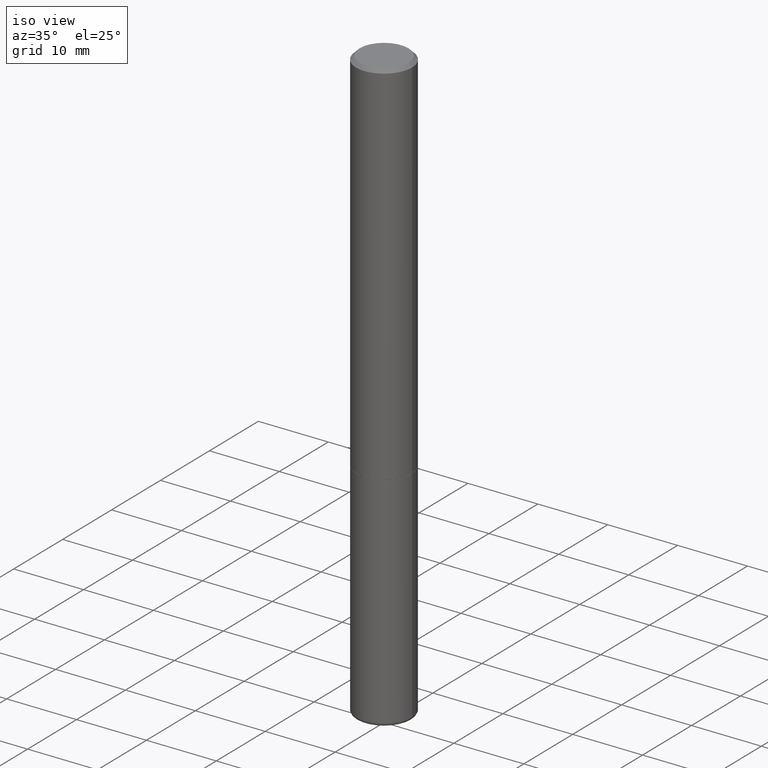
[diagram: clean part render]
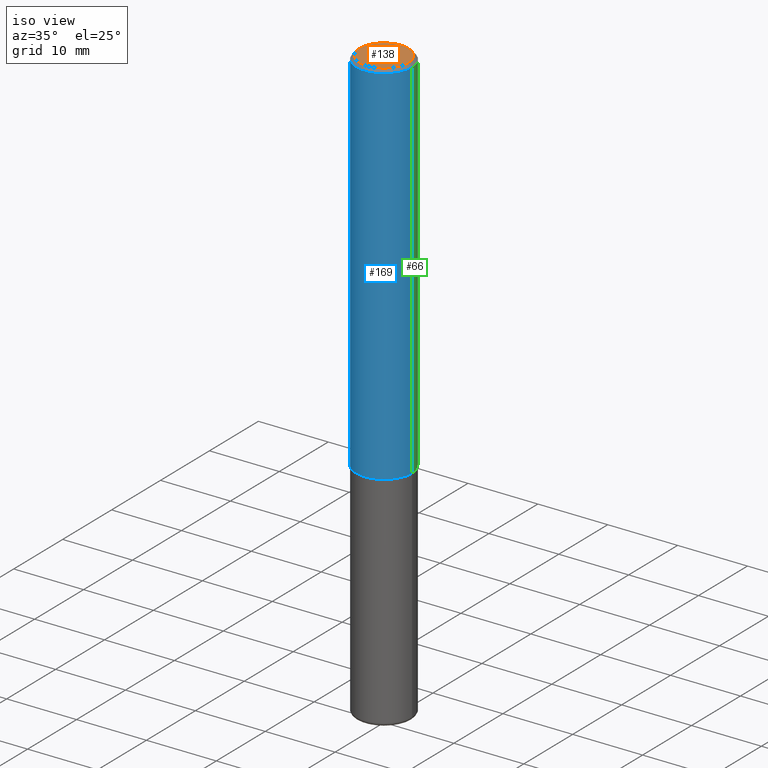
[diagram: same view with three faces highlighted in distinct colors, each labeled with its STEP entity id]
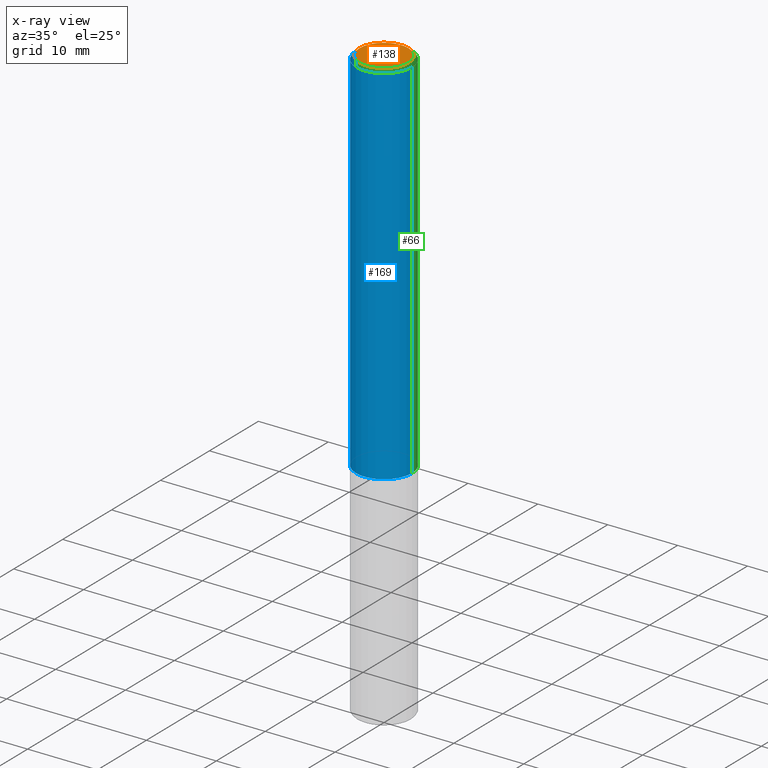
[diagram: x-ray of the same camera — body ghosted, the three highlighted faces saturated]
A machine part, iso view with three faces highlighted in distinct colors.
The next image is the same camera in x-ray (body ghosted, the three faces saturated) — at least one of them is partly hidden behind the body in this view.
Their STEP definitions:

[orange] entity #138 — the highlighted planar face has unit normal (0, -0, -1).
#54 = VERTEX_POINT ( 'NONE', #265 ) ;
#85 = EDGE_LOOP ( 'NONE', ( #198, #382 ) ) ;
#129 = DIRECTION ( 'NONE',  ( -2.445468806185136597E-29, 3.491481338843145583E-15, 1.000000000000000000 ) ) ;
#138 = ADVANCED_FACE ( 'NONE', ( #251 ), #222, .F. ) ;
#140 = VERTEX_POINT ( 'NONE', #216 ) ;
#148 = DIRECTION ( 'NONE',  ( -2.445468806185136597E-29, 3.491481338843145583E-15, 1.000000000000000000 ) ) ;
#180 = DIRECTION ( 'NONE',  ( -1.000000000000000000, 6.982962677686265922E-15, -4.876176775795935793E-29 ) ) ;
#182 = DIRECTION ( 'NONE',  ( 2.438088387897960049E-29, -3.491481338843145188E-15, -1.000000000000000000 ) ) ;
#196 = CARTESIAN_POINT ( 'NONE',  ( -4.906101647375532782E-45, 7.004612900788102525E-31, 2.006200870347193393E-16 ) ) ;
#198 = ORIENTED_EDGE ( 'NONE', *, *, #226, .T. ) ;
#216 = CARTESIAN_POINT ( 'NONE',  ( -0.1374999999999997891, 9.950721815702925329E-16, 2.006200870347125108E-16 ) ) ;
#222 = PLANE ( 'NONE',  #349 ) ;
#226 = EDGE_CURVE ( 'NONE', #140, #54, #243, .T. ) ;
#243 = CIRCLE ( 'NONE', #324, 0.1374999999999997891 ) ;
#248 = DIRECTION ( 'NONE',  ( 1.000000000000000000, -6.982962677686267499E-15, 4.874794762600771100E-29 ) ) ;
#251 = FACE_OUTER_BOUND ( 'NONE', #85, .T. ) ;
#265 = CARTESIAN_POINT ( 'NONE',  ( 0.1374999999999997891, -1.046838268059731505E-15, 2.006200870347263405E-16 ) ) ;
#284 = CARTESIAN_POINT ( 'NONE',  ( 9.601573681818600950E-16, 0.1374999999999997891, -3.797686405735721404E-16 ) ) ;
#310 = CIRCLE ( 'NONE', #314, 0.1374999999999997891 ) ;
#314 = AXIS2_PLACEMENT_3D ( 'NONE', #417, #148, #248 ) ;
#324 = AXIS2_PLACEMENT_3D ( 'NONE', #196, #129, #393 ) ;
#338 = EDGE_CURVE ( 'NONE', #54, #140, #310, .T. ) ;
#349 = AXIS2_PLACEMENT_3D ( 'NONE', #284, #182, #180 ) ;
#382 = ORIENTED_EDGE ( 'NONE', *, *, #338, .T. ) ;
#393 = DIRECTION ( 'NONE',  ( 1.000000000000000000, -6.982962677686267499E-15, 4.874794762600771100E-29 ) ) ;
#417 = CARTESIAN_POINT ( 'NONE',  ( -4.906101647375532782E-45, 7.004612900788102525E-31, 2.006200870347193393E-16 ) ) ;

[blue] entity #169 — the highlighted cylindrical surface (edge-blend (fillet) strip) has radius 4.0005 mm, axis along (-0, 0, 1).
#5 = CIRCLE ( 'NONE', #33, 0.1575000000000001954 ) ;
#14 = CARTESIAN_POINT ( 'NONE',  ( 0.000000000000000000, 0.000000000000000000, 0.000000000000000000 ) ) ;
#33 = AXIS2_PLACEMENT_3D ( 'NONE', #149, #187, #390 ) ;
#52 = VERTEX_POINT ( 'NONE', #141 ) ;
#73 = CARTESIAN_POINT ( 'NONE',  ( -0.1575000000000001954, -2.556901318778844062E-15, -2.085699999999999665 ) ) ;
#82 = VECTOR ( 'NONE', #116, 39.37007874015748143 ) ;
#96 = CIRCLE ( 'NONE', #214, 0.1575000000000000289 ) ;
#99 = DIRECTION ( 'NONE',  ( -2.445468806185136597E-29, 3.491481338843145583E-15, 1.000000000000000000 ) ) ;
#112 = EDGE_CURVE ( 'NONE', #271, #172, #219, .T. ) ;
#114 = ORIENTED_EDGE ( 'NONE', *, *, #112, .F. ) ;
#116 = DIRECTION ( 'NONE',  ( -2.445468806185136877E-29, 3.491481338843145188E-15, 1.000000000000000000 ) ) ;
#117 = DIRECTION ( 'NONE',  ( -2.445468806185136877E-29, 3.491481338843145188E-15, 1.000000000000000000 ) ) ;
#141 = CARTESIAN_POINT ( 'NONE',  ( 0.1575000000000000289, -1.150358061425879472E-15, -0.02000000000000003511 ) ) ;
#143 = EDGE_CURVE ( 'NONE', #207, #52, #316, .T. ) ;
#144 = ORIENTED_EDGE ( 'NONE', *, *, #143, .T. ) ;
#149 = CARTESIAN_POINT ( 'NONE',  ( 5.100514289060338336E-29, -7.282182628425147921E-15, -2.085699999999999665 ) ) ;
#161 = EDGE_CURVE ( 'NONE', #172, #52, #96, .T. ) ;
#164 = CARTESIAN_POINT ( 'NONE',  ( -0.1575000000000000289, 1.029986994958724182E-15, -0.02000000000000003511 ) ) ;
#169 = ADVANCED_FACE ( 'NONE', ( #230 ), #396, .T. ) ;
#172 = VERTEX_POINT ( 'NONE', #164 ) ;
#187 = DIRECTION ( 'NONE',  ( -2.445468806185136597E-29, 3.491481338843145583E-15, 1.000000000000000000 ) ) ;
#207 = VERTEX_POINT ( 'NONE', #224 ) ;
#214 = AXIS2_PLACEMENT_3D ( 'NONE', #362, #99, #259 ) ;
#219 = LINE ( 'NONE', #353, #395 ) ;
#224 = CARTESIAN_POINT ( 'NONE',  ( 0.1575000000000001954, -8.381999250160736190E-15, -2.085699999999999665 ) ) ;
#230 = FACE_OUTER_BOUND ( 'NONE', #336, .T. ) ;
#259 = DIRECTION ( 'NONE',  ( 1.000000000000000000, -6.982962677686267499E-15, 0.000000000000000000 ) ) ;
#264 = DIRECTION ( 'NONE',  ( -2.445468806185136597E-29, 3.491481338843145583E-15, 1.000000000000000000 ) ) ;
#271 = VERTEX_POINT ( 'NONE', #73 ) ;
#280 = AXIS2_PLACEMENT_3D ( 'NONE', #14, #264, #403 ) ;
#282 = CARTESIAN_POINT ( 'NONE',  ( 0.1575000000000000844, -1.099816621735587677E-15, 7.679978421878603638E-30 ) ) ;
#316 = LINE ( 'NONE', #282, #82 ) ;
#336 = EDGE_LOOP ( 'NONE', ( #114, #357, #144, #378 ) ) ;
#353 = CARTESIAN_POINT ( 'NONE',  ( -0.1575000000000000844, 1.119104808822158392E-15, -7.747322767151481189E-30 ) ) ;
#357 = ORIENTED_EDGE ( 'NONE', *, *, #416, .T. ) ;
#362 = CARTESIAN_POINT ( 'NONE',  ( 4.890937612370281041E-31, -6.982962677686302702E-17, -0.02000000000000003511 ) ) ;
#378 = ORIENTED_EDGE ( 'NONE', *, *, #161, .F. ) ;
#390 = DIRECTION ( 'NONE',  ( 1.000000000000000000, -6.982962677686265922E-15, 0.000000000000000000 ) ) ;
#395 = VECTOR ( 'NONE', #117, 39.37007874015748143 ) ;
#396 = CYLINDRICAL_SURFACE ( 'NONE', #280, 0.1575000000000000844 ) ;
#403 = DIRECTION ( 'NONE',  ( 1.000000000000000000, -6.982962677686267499E-15, 4.876176775795936353E-29 ) ) ;
#416 = EDGE_CURVE ( 'NONE', #271, #207, #5, .T. ) ;

[green] entity #66 — the highlighted cylindrical surface (edge-blend (fillet) strip) has radius 4.0005 mm, axis along (-0, 0, 1).
#28 = ORIENTED_EDGE ( 'NONE', *, *, #112, .T. ) ;
#48 = AXIS2_PLACEMENT_3D ( 'NONE', #301, #330, #400 ) ;
#52 = VERTEX_POINT ( 'NONE', #141 ) ;
#56 = DIRECTION ( 'NONE',  ( -2.445468806185136597E-29, 3.491481338843145583E-15, 1.000000000000000000 ) ) ;
#66 = ADVANCED_FACE ( 'NONE', ( #170 ), #404, .T. ) ;
#73 = CARTESIAN_POINT ( 'NONE',  ( -0.1575000000000001954, -2.556901318778844062E-15, -2.085699999999999665 ) ) ;
#82 = VECTOR ( 'NONE', #116, 39.37007874015748143 ) ;
#97 = DIRECTION ( 'NONE',  ( -2.445468806185136597E-29, 3.491481338843145583E-15, 1.000000000000000000 ) ) ;
#112 = EDGE_CURVE ( 'NONE', #271, #172, #219, .T. ) ;
#116 = DIRECTION ( 'NONE',  ( -2.445468806185136877E-29, 3.491481338843145188E-15, 1.000000000000000000 ) ) ;
#117 = DIRECTION ( 'NONE',  ( -2.445468806185136877E-29, 3.491481338843145188E-15, 1.000000000000000000 ) ) ;
#141 = CARTESIAN_POINT ( 'NONE',  ( 0.1575000000000000289, -1.150358061425879472E-15, -0.02000000000000003511 ) ) ;
#143 = EDGE_CURVE ( 'NONE', #207, #52, #316, .T. ) ;
#147 = EDGE_CURVE ( 'NONE', #52, #172, #411, .T. ) ;
#150 = CARTESIAN_POINT ( 'NONE',  ( 5.100514289060338336E-29, -7.282182628425147921E-15, -2.085699999999999665 ) ) ;
#164 = CARTESIAN_POINT ( 'NONE',  ( -0.1575000000000000289, 1.029986994958724182E-15, -0.02000000000000003511 ) ) ;
#170 = FACE_OUTER_BOUND ( 'NONE', #201, .T. ) ;
#172 = VERTEX_POINT ( 'NONE', #164 ) ;
#201 = EDGE_LOOP ( 'NONE', ( #408, #28, #320, #203 ) ) ;
#203 = ORIENTED_EDGE ( 'NONE', *, *, #143, .F. ) ;
#207 = VERTEX_POINT ( 'NONE', #224 ) ;
#219 = LINE ( 'NONE', #353, #395 ) ;
#224 = CARTESIAN_POINT ( 'NONE',  ( 0.1575000000000001954, -8.381999250160736190E-15, -2.085699999999999665 ) ) ;
#238 = CARTESIAN_POINT ( 'NONE',  ( 0.000000000000000000, 0.000000000000000000, 0.000000000000000000 ) ) ;
#249 = AXIS2_PLACEMENT_3D ( 'NONE', #150, #97, #388 ) ;
#271 = VERTEX_POINT ( 'NONE', #73 ) ;
#277 = CIRCLE ( 'NONE', #249, 0.1575000000000001954 ) ;
#282 = CARTESIAN_POINT ( 'NONE',  ( 0.1575000000000000844, -1.099816621735587677E-15, 7.679978421878603638E-30 ) ) ;
#301 = CARTESIAN_POINT ( 'NONE',  ( 4.890937612370281041E-31, -6.982962677686302702E-17, -0.02000000000000003511 ) ) ;
#311 = DIRECTION ( 'NONE',  ( 1.000000000000000000, -6.982962677686267499E-15, 4.876176775795936353E-29 ) ) ;
#316 = LINE ( 'NONE', #282, #82 ) ;
#320 = ORIENTED_EDGE ( 'NONE', *, *, #147, .F. ) ;
#330 = DIRECTION ( 'NONE',  ( -2.445468806185136597E-29, 3.491481338843145583E-15, 1.000000000000000000 ) ) ;
#348 = EDGE_CURVE ( 'NONE', #207, #271, #277, .T. ) ;
#353 = CARTESIAN_POINT ( 'NONE',  ( -0.1575000000000000844, 1.119104808822158392E-15, -7.747322767151481189E-30 ) ) ;
#388 = DIRECTION ( 'NONE',  ( 1.000000000000000000, -6.982962677686265922E-15, 0.000000000000000000 ) ) ;
#392 = AXIS2_PLACEMENT_3D ( 'NONE', #238, #56, #311 ) ;
#395 = VECTOR ( 'NONE', #117, 39.37007874015748143 ) ;
#400 = DIRECTION ( 'NONE',  ( 1.000000000000000000, -6.982962677686267499E-15, 0.000000000000000000 ) ) ;
#404 = CYLINDRICAL_SURFACE ( 'NONE', #392, 0.1575000000000000844 ) ;
#408 = ORIENTED_EDGE ( 'NONE', *, *, #348, .T. ) ;
#411 = CIRCLE ( 'NONE', #48, 0.1575000000000000289 ) ;